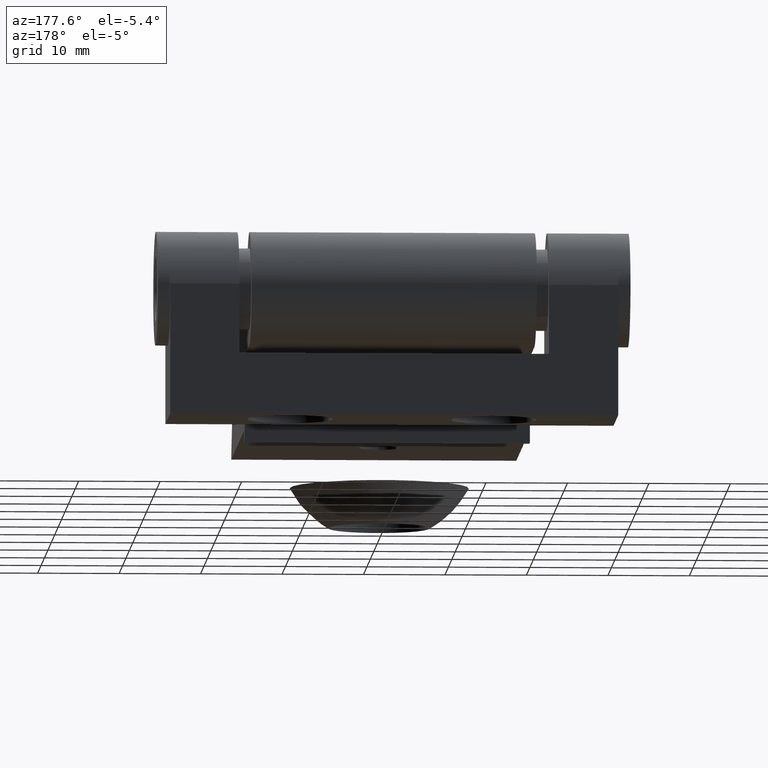
[diagram: clean part render]
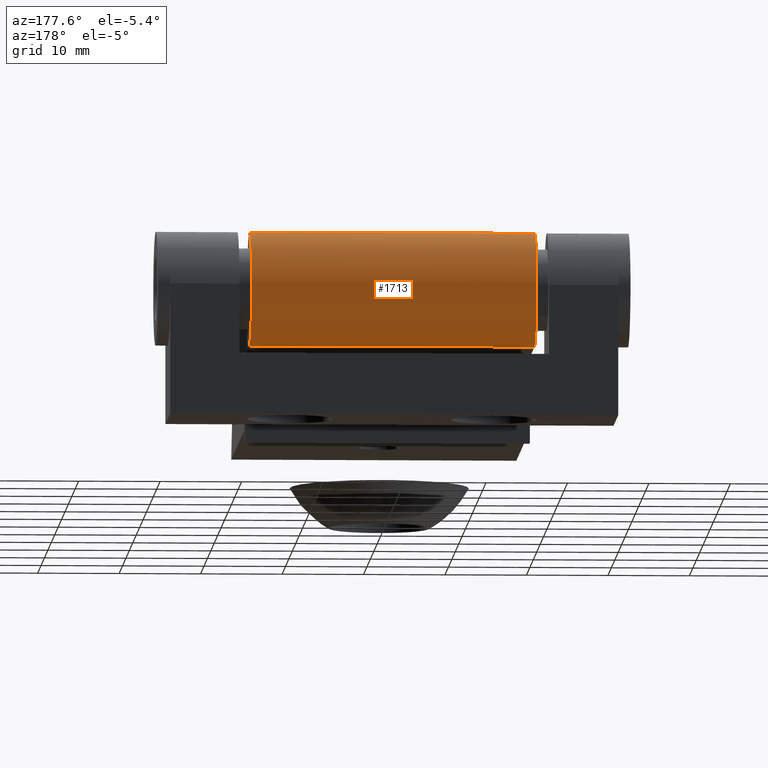
[diagram: same view with one face highlighted and labeled with its STEP entity id]
A machine part, auxiliary view. The second image highlights one B-rep face of the part: STEP entity #1713.
In plain terms, the highlighted cylindrical surface (partial cylindrical patch) has radius 7 mm, axis along (-1, -0, 0).
Its self-contained STEP definition (entity closure, byte-faithful):
#1653=CARTESIAN_POINT('',(17.500000000000000,-12.645934275169905,20.138046176695298));
#1654=VERTEX_POINT('',#1653);
#1662=CARTESIAN_POINT('',(-17.500000000000000,-12.645934275169905,20.138046176695298));
#1663=VERTEX_POINT('',#1662);
#1664=CARTESIAN_POINT('',(17.500000000000000,-12.645934275169905,20.138046176695298));
#1665=DIRECTION('',(-1.0,0.0,0.0));
#1666=VECTOR('',#1665,35.0);
#1667=LINE('',#1664,#1666);
#1668=EDGE_CURVE('',#1654,#1663,#1667,.T.);
#1681=CARTESIAN_POINT('',(17.500000000000000,-6.999999999999999,16.0));
#1682=DIRECTION('',(-1.0,-6.123234E-017,3.749399E-033));
#1683=DIRECTION('',(6.123234E-017,-1.0,6.123234E-017));
#1684=AXIS2_PLACEMENT_3D('',#1681,#1682,#1683);
#1685=CYLINDRICAL_SURFACE('',#1684,7.0);
#1686=CARTESIAN_POINT('',(17.500000000000000,-6.999999999999999,9.0));
#1687=VERTEX_POINT('',#1686);
#1688=CARTESIAN_POINT('',(17.500000000000000,-6.999999999999999,16.0));
#1689=DIRECTION('',(-1.0,-6.123234E-017,3.749399E-033));
#1690=DIRECTION('',(6.123234E-017,-1.0,6.123234E-017));
#1691=AXIS2_PLACEMENT_3D('',#1688,#1689,#1690);
#1692=CIRCLE('',#1691,7.0);
#1693=EDGE_CURVE('',#1654,#1687,#1692,.T.);
#1694=ORIENTED_EDGE('',*,*,#1693,.T.);
#1695=CARTESIAN_POINT('',(-17.500000000000000,-6.999999999999999,9.0));
#1696=VERTEX_POINT('',#1695);
#1697=CARTESIAN_POINT('',(17.500000000000000,-6.999999999999999,9.0));
#1698=DIRECTION('',(-1.0,0.0,0.0));
#1699=VECTOR('',#1698,35.0);
#1700=LINE('',#1697,#1699);
#1701=EDGE_CURVE('',#1687,#1696,#1700,.T.);
#1702=ORIENTED_EDGE('',*,*,#1701,.T.);
#1703=CARTESIAN_POINT('',(-17.500000000000000,-6.999999999999999,16.0));
#1704=DIRECTION('',(-1.0,-6.123234E-017,3.749399E-033));
#1705=DIRECTION('',(6.123234E-017,-1.0,6.123234E-017));
#1706=AXIS2_PLACEMENT_3D('',#1703,#1704,#1705);
#1707=CIRCLE('',#1706,7.0);
#1708=EDGE_CURVE('',#1663,#1696,#1707,.T.);
#1709=ORIENTED_EDGE('',*,*,#1708,.F.);
#1710=ORIENTED_EDGE('',*,*,#1668,.F.);
#1711=EDGE_LOOP('',(#1694,#1702,#1709,#1710));
#1712=FACE_OUTER_BOUND('',#1711,.T.);
#1713=ADVANCED_FACE('',(#1712),#1685,.T.);